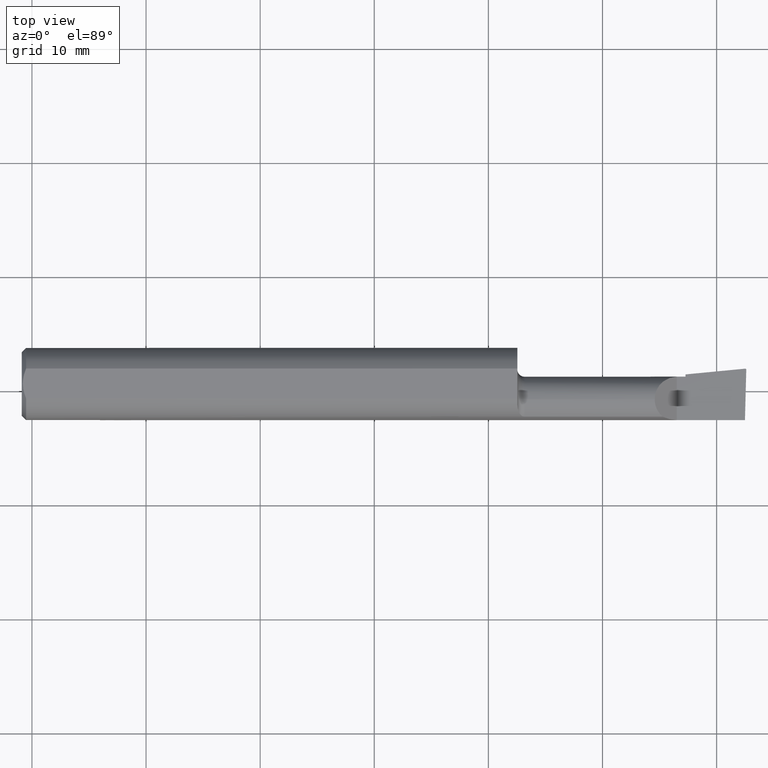
[diagram: clean part render]
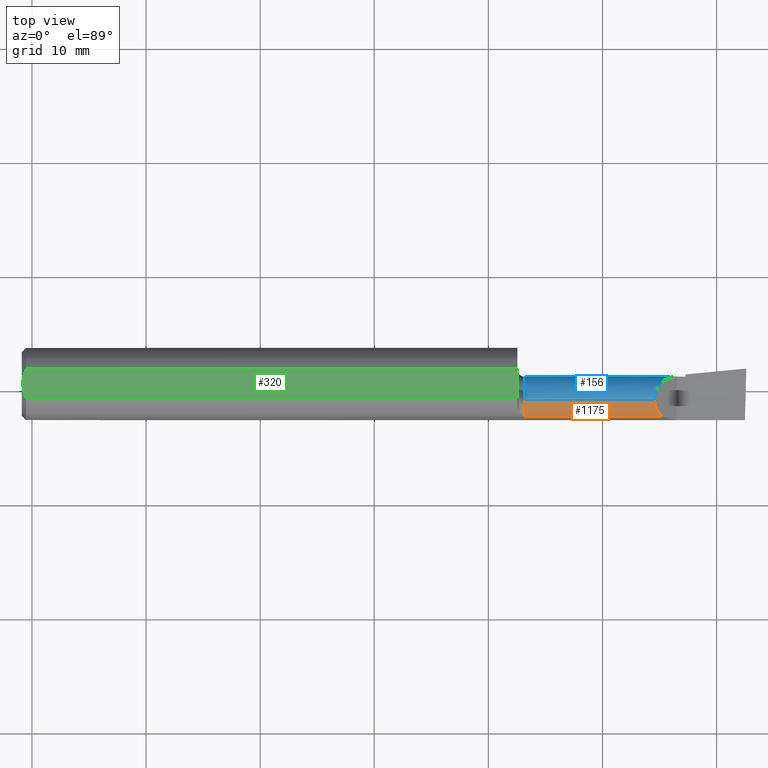
[diagram: same view with three faces highlighted in distinct colors, each labeled with its STEP entity id]
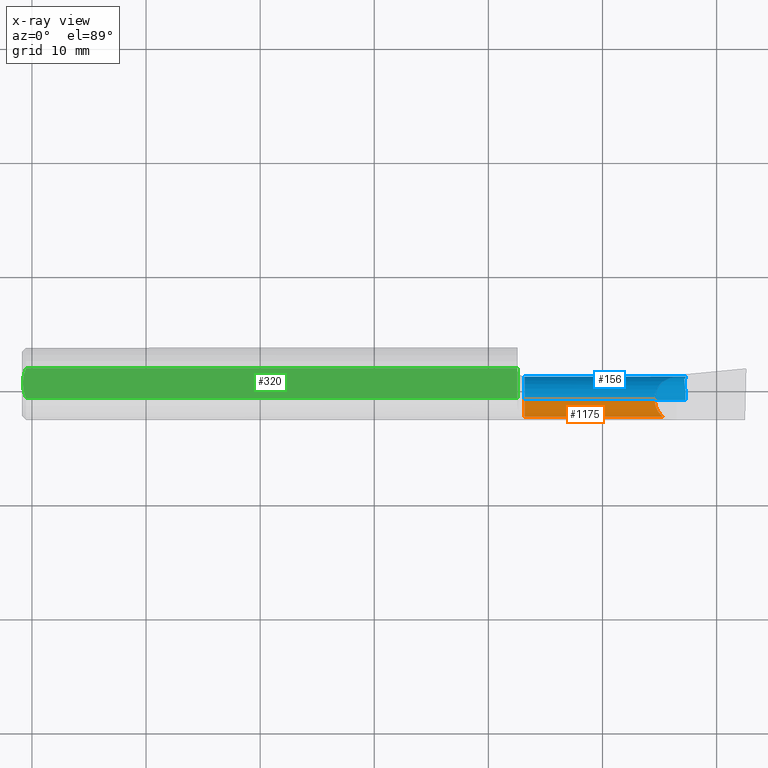
[diagram: x-ray of the same camera — body ghosted, the three highlighted faces saturated]
A machine part, top view with three faces highlighted in distinct colors.
The next image is the same camera in x-ray (body ghosted, the three faces saturated) — at least one of them is partly hidden behind the body in this view.
Their STEP definitions:

[orange] entity #1175 — the highlighted cylindrical surface (edge-blend (fillet) strip) has radius 2.0066 mm, axis along (-1, -0, -0).
#25 =( BOUNDED_CURVE ( )  B_SPLINE_CURVE ( 3, ( #151, #548, #224, #1028 ),
 .UNSPECIFIED., .F., .F. ) 
 B_SPLINE_CURVE_WITH_KNOTS ( ( 4, 4 ),
 ( 0.000000000000000000, 0.8597745120122681772 ),
 .UNSPECIFIED. ) 
 CURVE ( )  GEOMETRIC_REPRESENTATION_ITEM ( )  RATIONAL_B_SPLINE_CURVE ( ( 1.000000000000000000, 0.9393418290513007030, 0.9393418290513007030, 1.000000000000000000 ) ) 
 REPRESENTATION_ITEM ( '' )  );
#38 = CARTESIAN_POINT ( 'NONE',  ( 2.211293941458323253, -0.1137079387186629154, 0.05155605854167673308 ) ) ;
#78 = ORIENTED_EDGE ( 'NONE', *, *, #1130, .T. ) ;
#90 = VECTOR ( 'NONE', #110, 39.37007874015748143 ) ;
#103 = CARTESIAN_POINT ( 'NONE',  ( 2.000000000000000000, -0.1137079387186629154, 0.05155605854167669838 ) ) ;
#110 = DIRECTION ( 'NONE',  ( -1.000000000000000000, -0.000000000000000000, -0.000000000000000000 ) ) ;
#147 = AXIS2_PLACEMENT_3D ( 'NONE', #675, #577, #654 ) ;
#151 = CARTESIAN_POINT ( 'NONE',  ( 2.183850000000000069, -0.05385000000000000897, 0.07900000000000000078 ) ) ;
#184 = ORIENTED_EDGE ( 'NONE', *, *, #460, .T. ) ;
#224 = CARTESIAN_POINT ( 'NONE',  ( 2.193588713004345880, -0.09845830242635222884, 0.06926128699565432811 ) ) ;
#239 = CARTESIAN_POINT ( 'NONE',  ( 2.183850000000000069, -0.05385000000000000897, 0.07900000000000000078 ) ) ;
#260 = CYLINDRICAL_SURFACE ( 'NONE', #147, 0.07900000000000000078 ) ;
#289 = FACE_OUTER_BOUND ( 'NONE', #1250, .T. ) ;
#299 = ORIENTED_EDGE ( 'NONE', *, *, #1126, .F. ) ;
#301 = AXIS2_PLACEMENT_3D ( 'NONE', #1219, #529, #1208 ) ;
#313 = LINE ( 'NONE', #1091, #90 ) ;
#392 = VERTEX_POINT ( 'NONE', #717 ) ;
#404 = VECTOR ( 'NONE', #1181, 39.37007874015748143 ) ;
#460 = EDGE_CURVE ( 'NONE', #1055, #955, #313, .T. ) ;
#529 = DIRECTION ( 'NONE',  ( 1.000000000000000000, 0.000000000000000000, 0.000000000000000000 ) ) ;
#548 = CARTESIAN_POINT ( 'NONE',  ( 2.183850000000000069, -0.07721721039523751773, 0.07900000000000000078 ) ) ;
#577 = DIRECTION ( 'NONE',  ( -1.000000000000000000, -0.000000000000000000, -0.000000000000000000 ) ) ;
#654 = DIRECTION ( 'NONE',  ( 0.000000000000000000, 0.000000000000000000, 1.000000000000000000 ) ) ;
#660 = VERTEX_POINT ( 'NONE', #38 ) ;
#675 = CARTESIAN_POINT ( 'NONE',  ( 1.709999999999999964, -0.05385000000000000897, 0.000000000000000000 ) ) ;
#707 = CARTESIAN_POINT ( 'NONE',  ( 1.734999999999999876, -0.05385000000000000897, 0.07900000000000000078 ) ) ;
#713 = CIRCLE ( 'NONE', #301, 0.07900000000000000078 ) ;
#717 = CARTESIAN_POINT ( 'NONE',  ( 1.734999999999999876, -0.1137079387186629154, 0.05155605854167669838 ) ) ;
#849 = EDGE_CURVE ( 'NONE', #392, #660, #1197, .T. ) ;
#955 = VERTEX_POINT ( 'NONE', #707 ) ;
#1028 = CARTESIAN_POINT ( 'NONE',  ( 2.211293941458323253, -0.1137079387186629154, 0.05155605854167673308 ) ) ;
#1055 = VERTEX_POINT ( 'NONE', #239 ) ;
#1091 = CARTESIAN_POINT ( 'NONE',  ( 1.709999999999999964, -0.05385000000000000897, 0.07900000000000000078 ) ) ;
#1126 = EDGE_CURVE ( 'NONE', #1055, #660, #25, .T. ) ;
#1130 = EDGE_CURVE ( 'NONE', #955, #392, #713, .T. ) ;
#1175 = ADVANCED_FACE ( 'NONE', ( #289 ), #260, .T. ) ;
#1181 = DIRECTION ( 'NONE',  ( 1.000000000000000000, 0.000000000000000000, 0.000000000000000000 ) ) ;
#1192 = ORIENTED_EDGE ( 'NONE', *, *, #849, .T. ) ;
#1197 = LINE ( 'NONE', #103, #404 ) ;
#1208 = DIRECTION ( 'NONE',  ( 0.000000000000000000, 0.000000000000000000, -1.000000000000000000 ) ) ;
#1219 = CARTESIAN_POINT ( 'NONE',  ( 1.734999999999999876, -0.05385000000000000897, 0.000000000000000000 ) ) ;
#1250 = EDGE_LOOP ( 'NONE', ( #299, #184, #78, #1192 ) ) ;

[blue] entity #156 — the highlighted cylindrical surface (edge-blend (fillet) strip) has radius 2.0066 mm, axis along (-1, -0, -0).
#9 = AXIS2_PLACEMENT_3D ( 'NONE', #640, #1036, #152 ) ;
#16 = DIRECTION ( 'NONE',  ( 0.000000000000000000, 0.000000000000000000, -1.000000000000000000 ) ) ;
#48 = DIRECTION ( 'NONE',  ( -1.000000000000000000, -0.000000000000000000, -0.000000000000000000 ) ) ;
#54 = CARTESIAN_POINT ( 'NONE',  ( 2.290000000000000036, -0.05385000000000000897, 0.000000000000000000 ) ) ;
#87 = DIRECTION ( 'NONE',  ( 0.000000000000000000, 0.000000000000000000, 1.000000000000000000 ) ) ;
#90 = VECTOR ( 'NONE', #110, 39.37007874015748143 ) ;
#110 = DIRECTION ( 'NONE',  ( -1.000000000000000000, -0.000000000000000000, -0.000000000000000000 ) ) ;
#120 = EDGE_CURVE ( 'NONE', #910, #1257, #914, .T. ) ;
#138 = CARTESIAN_POINT ( 'NONE',  ( 2.286863283256889812, 0.01060625829597275360, -0.04922741679715077201 ) ) ;
#141 = CARTESIAN_POINT ( 'NONE',  ( 2.260000000000000231, 0.02509857503463882797, 0.002850000000000285031 ) ) ;
#152 = DIRECTION ( 'NONE',  ( 0.000000000000000000, 0.000000000000000000, 1.000000000000000000 ) ) ;
#156 = ADVANCED_FACE ( 'NONE', ( #768 ), #292, .T. ) ;
#158 = CARTESIAN_POINT ( 'NONE',  ( 2.260000000000000231, 0.02514999999999998487, -3.414809992080329023E-17 ) ) ;
#185 = DIRECTION ( 'NONE',  ( -1.000000000000000000, -0.000000000000000000, -0.000000000000000000 ) ) ;
#205 =( BOUNDED_CURVE ( )  B_SPLINE_CURVE ( 3, ( #549, #426, #138, #530 ),
 .UNSPECIFIED., .F., .T. ) 
 B_SPLINE_CURVE_WITH_KNOTS ( ( 4, 4 ),
 ( 4.389560101394110347, 5.072982881775853770 ),
 .UNSPECIFIED. ) 
 CURVE ( )  GEOMETRIC_REPRESENTATION_ITEM ( )  RATIONAL_B_SPLINE_CURVE ( ( 1.000000000000000000, 0.9614550391149974118, 0.9614550391149974118, 1.000000000000000000 ) ) 
 REPRESENTATION_ITEM ( '' )  );
#212 = EDGE_CURVE ( 'NONE', #1246, #1033, #581, .T. ) ;
#216 = VERTEX_POINT ( 'NONE', #976 ) ;
#231 = CARTESIAN_POINT ( 'NONE',  ( 2.290000000000000036, 0.02514999999999998487, -3.414809992080329023E-17 ) ) ;
#239 = CARTESIAN_POINT ( 'NONE',  ( 2.183850000000000069, -0.05385000000000000897, 0.07900000000000000078 ) ) ;
#248 =( BOUNDED_CURVE ( )  B_SPLINE_CURVE ( 3, ( #141, #838, #921, #1023 ),
 .UNSPECIFIED., .F., .T. ) 
 B_SPLINE_CURVE_WITH_KNOTS ( ( 4, 4 ),
 ( 4.748472759657429876, 6.283185307179586232 ),
 .UNSPECIFIED. ) 
 CURVE ( )  GEOMETRIC_REPRESENTATION_ITEM ( )  RATIONAL_B_SPLINE_CURVE ( ( 1.000000000000000000, 0.8131656997482654692, 0.8131656997482654692, 1.000000000000000000 ) ) 
 REPRESENTATION_ITEM ( '' )  );
#251 = CARTESIAN_POINT ( 'NONE',  ( 1.734999999999999876, -0.05385000000000000897, 0.000000000000000000 ) ) ;
#275 = ORIENTED_EDGE ( 'NONE', *, *, #120, .F. ) ;
#292 = CYLINDRICAL_SURFACE ( 'NONE', #997, 0.07900000000000000078 ) ;
#293 = ORIENTED_EDGE ( 'NONE', *, *, #460, .F. ) ;
#312 = ORIENTED_EDGE ( 'NONE', *, *, #597, .F. ) ;
#313 = LINE ( 'NONE', #1091, #90 ) ;
#317 = CARTESIAN_POINT ( 'NONE',  ( 2.290000000000000480, -0.01839387631621007893, -0.07059648215966424223 ) ) ;
#322 = CARTESIAN_POINT ( 'NONE',  ( 1.734999999999999876, -0.05385000000000000203, -0.07900000000000000078 ) ) ;
#329 = CARTESIAN_POINT ( 'NONE',  ( 2.287167223447292841, 0.01803548479585101449, -0.03276529046169187470 ) ) ;
#342 = DIRECTION ( 'NONE',  ( 1.000000000000000000, 0.000000000000000000, 0.000000000000000000 ) ) ;
#356 = VECTOR ( 'NONE', #1073, 39.37007874015748143 ) ;
#372 = ORIENTED_EDGE ( 'NONE', *, *, #960, .F. ) ;
#387 = CARTESIAN_POINT ( 'NONE',  ( 1.709999999999999964, -0.05385000000000000203, -0.07900000000000000078 ) ) ;
#397 = CARTESIAN_POINT ( 'NONE',  ( 1.709999999999999964, -0.05385000000000000897, 0.000000000000000000 ) ) ;
#407 = CARTESIAN_POINT ( 'NONE',  ( 2.260000000000000231, -0.05385000000000000897, 0.000000000000000000 ) ) ;
#425 = CARTESIAN_POINT ( 'NONE',  ( 2.285716982925383611, 0.01815694157993221966, -0.03249615922388707917 ) ) ;
#426 = CARTESIAN_POINT ( 'NONE',  ( 2.288088153795166946, -0.002114508615796646500, -0.06246108171711869939 ) ) ;
#448 = DIRECTION ( 'NONE',  ( 0.000000000000000000, 0.000000000000000000, 1.000000000000000000 ) ) ;
#457 = VERTEX_POINT ( 'NONE', #696 ) ;
#460 = EDGE_CURVE ( 'NONE', #1055, #955, #313, .T. ) ;
#499 = VERTEX_POINT ( 'NONE', #710 ) ;
#500 = EDGE_CURVE ( 'NONE', #1109, #955, #1121, .T. ) ;
#530 = CARTESIAN_POINT ( 'NONE',  ( 2.285716982925383611, 0.01815694157993221966, -0.03249615922388707917 ) ) ;
#538 = EDGE_CURVE ( 'NONE', #910, #457, #900, .T. ) ;
#549 = CARTESIAN_POINT ( 'NONE',  ( 2.289249956779253470, -0.01853439476625176260, -0.07066688069367470237 ) ) ;
#555 = LINE ( 'NONE', #387, #879 ) ;
#579 = ORIENTED_EDGE ( 'NONE', *, *, #500, .T. ) ;
#581 = LINE ( 'NONE', #1169, #356 ) ;
#583 = EDGE_CURVE ( 'NONE', #1033, #744, #1245, .T. ) ;
#597 = EDGE_CURVE ( 'NONE', #1257, #216, #205, .T. ) ;
#598 = DIRECTION ( 'NONE',  ( 1.000000000000000000, -0.000000000000000000, 0.000000000000000000 ) ) ;
#614 =( BOUNDED_CURVE ( )  B_SPLINE_CURVE ( 3, ( #425, #329, #724, #1118 ),
 .UNSPECIFIED., .F., .T. ) 
 B_SPLINE_CURVE_WITH_KNOTS ( ( 4, 4 ),
 ( 2.795269658945859881, 2.806482320755506965 ),
 .UNSPECIFIED. ) 
 CURVE ( )  GEOMETRIC_REPRESENTATION_ITEM ( )  RATIONAL_B_SPLINE_CURVE ( ( 1.000000000000000000, 0.9999895230453701434, 0.9999895230453701434, 1.000000000000000000 ) ) 
 REPRESENTATION_ITEM ( '' )  );
#626 = AXIS2_PLACEMENT_3D ( 'NONE', #54, #48, #448 ) ;
#637 = CARTESIAN_POINT ( 'NONE',  ( 2.289750697494798093, -0.01844069244940093125, -0.07061999492627857311 ) ) ;
#640 = CARTESIAN_POINT ( 'NONE',  ( 2.290000000000000036, -0.05385000000000000897, 0.000000000000000000 ) ) ;
#688 = ORIENTED_EDGE ( 'NONE', *, *, #1252, .T. ) ;
#696 = CARTESIAN_POINT ( 'NONE',  ( 2.290000000000000036, -0.05385000000000000203, -0.07900000000000000078 ) ) ;
#707 = CARTESIAN_POINT ( 'NONE',  ( 1.734999999999999876, -0.05385000000000000897, 0.07900000000000000078 ) ) ;
#709 = EDGE_LOOP ( 'NONE', ( #759, #688, #579, #293, #372, #1171, #784, #968, #990, #312, #275 ) ) ;
#710 = CARTESIAN_POINT ( 'NONE',  ( 2.260000000000000231, 0.02509857503463882797, 0.002850000000000285031 ) ) ;
#724 = CARTESIAN_POINT ( 'NONE',  ( 2.288594910763313450, 0.01791252108964366471, -0.03303373654662777881 ) ) ;
#744 = VERTEX_POINT ( 'NONE', #1283 ) ;
#759 = ORIENTED_EDGE ( 'NONE', *, *, #538, .T. ) ;
#768 = FACE_OUTER_BOUND ( 'NONE', #709, .T. ) ;
#784 = ORIENTED_EDGE ( 'NONE', *, *, #212, .T. ) ;
#828 = EDGE_CURVE ( 'NONE', #1246, #499, #957, .T. ) ;
#838 = CARTESIAN_POINT ( 'NONE',  ( 2.215065450112063683, 0.02347646257568132902, 0.04778454988793640751 ) ) ;
#846 = CARTESIAN_POINT ( 'NONE',  ( 2.290000000000000480, -0.01839387631621007893, -0.07059648215966424223 ) ) ;
#879 = VECTOR ( 'NONE', #185, 39.37007874015748143 ) ;
#900 = CIRCLE ( 'NONE', #626, 0.07900000000000000078 ) ;
#910 = VERTEX_POINT ( 'NONE', #317 ) ;
#914 =( BOUNDED_CURVE ( )  B_SPLINE_CURVE ( 3, ( #846, #637, #1031, #931 ),
 .UNSPECIFIED., .F., .F. ) 
 B_SPLINE_CURVE_WITH_KNOTS ( ( 4, 4 ),
 ( 3.476702986424079711, 3.478692439327600638 ),
 .UNSPECIFIED. ) 
 CURVE ( )  GEOMETRIC_REPRESENTATION_ITEM ( )  RATIONAL_B_SPLINE_CURVE ( ( 1.000000000000000000, 0.9999996701731224125, 0.9999996701731224125, 1.000000000000000000 ) ) 
 REPRESENTATION_ITEM ( '' )  );
#921 = CARTESIAN_POINT ( 'NONE',  ( 2.183850000000000513, -0.008886180962234433225, 0.07900000000000000078 ) ) ;
#931 = CARTESIAN_POINT ( 'NONE',  ( 2.289249956779253470, -0.01853439476625176260, -0.07066688069367470237 ) ) ;
#934 = AXIS2_PLACEMENT_3D ( 'NONE', #251, #342, #1234 ) ;
#950 = CARTESIAN_POINT ( 'NONE',  ( 2.289249956779253470, -0.01853439476625176260, -0.07066688069367470237 ) ) ;
#955 = VERTEX_POINT ( 'NONE', #707 ) ;
#957 = CIRCLE ( 'NONE', #1061, 0.07900000000000000078 ) ;
#960 = EDGE_CURVE ( 'NONE', #499, #1055, #248, .T. ) ;
#968 = ORIENTED_EDGE ( 'NONE', *, *, #583, .T. ) ;
#976 = CARTESIAN_POINT ( 'NONE',  ( 2.285716982925383611, 0.01815694157993221966, -0.03249615922388707917 ) ) ;
#990 = ORIENTED_EDGE ( 'NONE', *, *, #1147, .F. ) ;
#997 = AXIS2_PLACEMENT_3D ( 'NONE', #397, #1153, #87 ) ;
#1023 = CARTESIAN_POINT ( 'NONE',  ( 2.183850000000000069, -0.05385000000000000897, 0.07900000000000000078 ) ) ;
#1031 = CARTESIAN_POINT ( 'NONE',  ( 2.289500683005420978, -0.01848753194819706749, -0.07064346111202182699 ) ) ;
#1033 = VERTEX_POINT ( 'NONE', #231 ) ;
#1036 = DIRECTION ( 'NONE',  ( -1.000000000000000000, -0.000000000000000000, -0.000000000000000000 ) ) ;
#1055 = VERTEX_POINT ( 'NONE', #239 ) ;
#1061 = AXIS2_PLACEMENT_3D ( 'NONE', #407, #598, #16 ) ;
#1073 = DIRECTION ( 'NONE',  ( 1.000000000000000000, 0.000000000000000000, 0.000000000000000000 ) ) ;
#1091 = CARTESIAN_POINT ( 'NONE',  ( 1.709999999999999964, -0.05385000000000000897, 0.07900000000000000078 ) ) ;
#1109 = VERTEX_POINT ( 'NONE', #322 ) ;
#1118 = CARTESIAN_POINT ( 'NONE',  ( 2.290000000000000036, 0.01778805432616575866, -0.03330148904120239922 ) ) ;
#1121 = CIRCLE ( 'NONE', #934, 0.07900000000000000078 ) ;
#1147 = EDGE_CURVE ( 'NONE', #216, #744, #614, .T. ) ;
#1153 = DIRECTION ( 'NONE',  ( -1.000000000000000000, -0.000000000000000000, -0.000000000000000000 ) ) ;
#1169 = CARTESIAN_POINT ( 'NONE',  ( 1.709999999999999964, 0.02514999999999997099, -3.414809992080329023E-17 ) ) ;
#1171 = ORIENTED_EDGE ( 'NONE', *, *, #828, .F. ) ;
#1234 = DIRECTION ( 'NONE',  ( 0.000000000000000000, 0.000000000000000000, -1.000000000000000000 ) ) ;
#1245 = CIRCLE ( 'NONE', #9, 0.07900000000000000078 ) ;
#1246 = VERTEX_POINT ( 'NONE', #158 ) ;
#1252 = EDGE_CURVE ( 'NONE', #457, #1109, #555, .T. ) ;
#1257 = VERTEX_POINT ( 'NONE', #950 ) ;
#1283 = CARTESIAN_POINT ( 'NONE',  ( 2.290000000000000036, 0.01778805432616575866, -0.03330148904120239922 ) ) ;

[green] entity #320 — the highlighted planar face has unit normal (0, 0, -1).
#22 = VECTOR ( 'NONE', #664, 39.37007874015748143 ) ;
#59 = DIRECTION ( 'NONE',  ( 1.000000000000000000, 0.000000000000000000, 0.000000000000000000 ) ) ;
#66 = VECTOR ( 'NONE', #667, 39.37007874015748143 ) ;
#69 = LINE ( 'NONE', #684, #66 ) ;
#84 = CARTESIAN_POINT ( 'NONE',  ( 2.500000000000000000, 0.05124158467494929065, 0.1138500000000000068 ) ) ;
#89 = AXIS2_PLACEMENT_3D ( 'NONE', #815, #1101, #1110 ) ;
#130 = VERTEX_POINT ( 'NONE', #872 ) ;
#144 = B_SPLINE_CURVE_WITH_KNOTS ( 'NONE', 3,
 ( #349, #850, #926, #930, #430, #1131 ),
 .UNSPECIFIED., .F., .F.,
 ( 4, 2, 4 ),
 ( 0.002543458196361383494, 0.003213918189955208317, 0.003884378183549032706 ),
 .UNSPECIFIED. ) ;
#179 = LINE ( 'NONE', #84, #650 ) ;
#285 = CARTESIAN_POINT ( 'NONE',  ( 0.003999999999999198641, 0.008800694614867335397, 0.1138500000000000068 ) ) ;
#287 = EDGE_CURVE ( 'NONE', #767, #576, #670, .T. ) ;
#291 = CARTESIAN_POINT ( 'NONE',  ( 0.01167190377471789137, 0.04313268608482604544, 0.1138500000000000068 ) ) ;
#320 = ADVANCED_FACE ( 'NONE', ( #1263 ), #380, .F. ) ;
#349 = CARTESIAN_POINT ( 'NONE',  ( 0.003999999999982063043, -1.276290005483319770E-15, 0.1138500000000000068 ) ) ;
#363 = CARTESIAN_POINT ( 'NONE',  ( 0.003999999999982063043, -1.276290005483319770E-15, 0.1138500000000000068 ) ) ;
#369 = ORIENTED_EDGE ( 'NONE', *, *, #503, .T. ) ;
#380 = PLANE ( 'NONE',  #89 ) ;
#396 = ORIENTED_EDGE ( 'NONE', *, *, #1269, .F. ) ;
#430 = CARTESIAN_POINT ( 'NONE',  ( 0.01167347033176660206, -0.04313650299737419730, 0.1138500000000000068 ) ) ;
#496 = VERTEX_POINT ( 'NONE', #604 ) ;
#503 = EDGE_CURVE ( 'NONE', #130, #576, #144, .T. ) ;
#517 = CARTESIAN_POINT ( 'NONE',  ( 0.01499999999999915637, 0.05124158467494929065, 0.1138500000000000068 ) ) ;
#570 = B_SPLINE_CURVE_WITH_KNOTS ( 'NONE', 3,
 ( #783, #291, #1262, #877, #285, #363 ),
 .UNSPECIFIED., .F., .F.,
 ( 4, 2, 4 ),
 ( 0.001209797888329806285, 0.001876628042345594889, 0.002543458196361383494 ),
 .UNSPECIFIED. ) ;
#576 = VERTEX_POINT ( 'NONE', #827 ) ;
#604 = CARTESIAN_POINT ( 'NONE',  ( 1.709999999999999964, 0.05124158467494929065, 0.1138500000000000068 ) ) ;
#650 = VECTOR ( 'NONE', #59, 39.37007874015748143 ) ;
#653 = ORIENTED_EDGE ( 'NONE', *, *, #726, .T. ) ;
#664 = DIRECTION ( 'NONE',  ( -1.000000000000000000, -0.000000000000000000, -0.000000000000000000 ) ) ;
#667 = DIRECTION ( 'NONE',  ( 0.000000000000000000, -1.000000000000000000, 0.000000000000000000 ) ) ;
#670 = LINE ( 'NONE', #859, #22 ) ;
#684 = CARTESIAN_POINT ( 'NONE',  ( 1.709999999999999964, 0.1000000000000000056, 0.1138500000000000068 ) ) ;
#726 = EDGE_CURVE ( 'NONE', #885, #130, #570, .T. ) ;
#729 = EDGE_CURVE ( 'NONE', #496, #767, #69, .T. ) ;
#753 = CARTESIAN_POINT ( 'NONE',  ( 1.709999999999999964, -0.05124158467494929065, 0.1138500000000000068 ) ) ;
#767 = VERTEX_POINT ( 'NONE', #753 ) ;
#783 = CARTESIAN_POINT ( 'NONE',  ( 0.01499999999999915637, 0.05124158467494929065, 0.1138500000000000068 ) ) ;
#815 = CARTESIAN_POINT ( 'NONE',  ( 0.000000000000000000, 0.1000000000000000056, 0.1138500000000000068 ) ) ;
#827 = CARTESIAN_POINT ( 'NONE',  ( 0.01499999999999915637, -0.05124158467494929065, 0.1138500000000000068 ) ) ;
#850 = CARTESIAN_POINT ( 'NONE',  ( 0.003999999999999697374, -0.008848600531297726168, 0.1138500000000000068 ) ) ;
#859 = CARTESIAN_POINT ( 'NONE',  ( 2.500000000000000000, -0.05124158467494929065, 0.1138500000000000068 ) ) ;
#872 = CARTESIAN_POINT ( 'NONE',  ( 0.003999999999982063043, -1.276290005483319770E-15, 0.1138500000000000068 ) ) ;
#877 = CARTESIAN_POINT ( 'NONE',  ( 0.005030588787081020918, 0.01748826716933451694, 0.1138499999999999790 ) ) ;
#885 = VERTEX_POINT ( 'NONE', #517 ) ;
#926 = CARTESIAN_POINT ( 'NONE',  ( 0.005080301127455556266, -0.01778481300359940204, 0.1138500000000000206 ) ) ;
#930 = CARTESIAN_POINT ( 'NONE',  ( 0.008925039223039429870, -0.03485448893270378518, 0.1138499999999999790 ) ) ;
#1046 = EDGE_LOOP ( 'NONE', ( #1218, #396, #653, #369, #1078 ) ) ;
#1078 = ORIENTED_EDGE ( 'NONE', *, *, #287, .F. ) ;
#1101 = DIRECTION ( 'NONE',  ( -0.000000000000000000, 0.000000000000000000, -1.000000000000000000 ) ) ;
#1110 = DIRECTION ( 'NONE',  ( -1.000000000000000000, 0.000000000000000000, 0.000000000000000000 ) ) ;
#1131 = CARTESIAN_POINT ( 'NONE',  ( 0.01499999999999915637, -0.05124158467494929065, 0.1138500000000000068 ) ) ;
#1218 = ORIENTED_EDGE ( 'NONE', *, *, #729, .F. ) ;
#1262 = CARTESIAN_POINT ( 'NONE',  ( 0.008866562462786907461, 0.03466860267591458100, 0.1138500000000000206 ) ) ;
#1263 = FACE_OUTER_BOUND ( 'NONE', #1046, .T. ) ;
#1269 = EDGE_CURVE ( 'NONE', #885, #496, #179, .T. ) ;